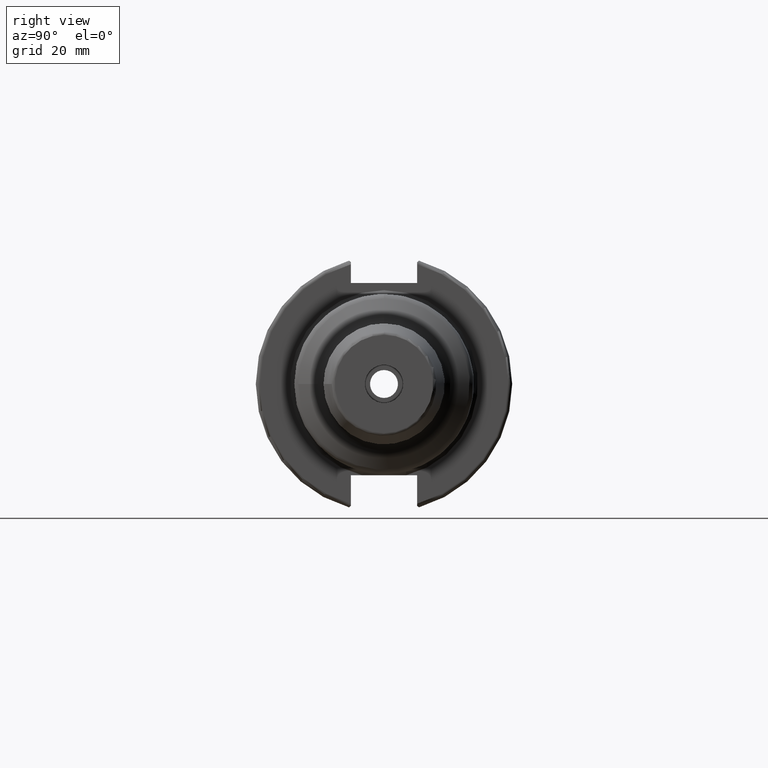
[diagram: clean part render]
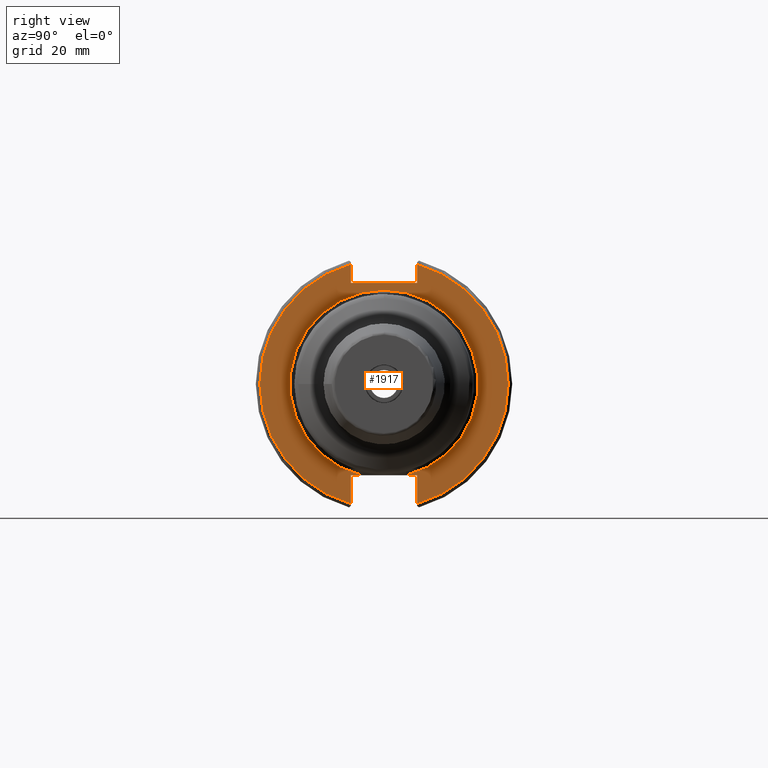
[diagram: same view with one face highlighted and labeled with its STEP entity id]
A machine part, right view. The second image highlights one B-rep face of the part: STEP entity #1917.
In plain terms, the highlighted planar face has unit normal (1, 0, 0).
Its self-contained STEP definition (entity closure, byte-faithful):
#146=PLANE('',#2168);
#216=LINE('',#3523,#311);
#217=LINE('',#3524,#312);
#218=LINE('',#3526,#313);
#219=LINE('',#3528,#314);
#220=LINE('',#3530,#315);
#221=LINE('',#3534,#316);
#222=LINE('',#3535,#317);
#311=VECTOR('',#2662,10.);
#312=VECTOR('',#2663,10.);
#313=VECTOR('',#2664,10.);
#314=VECTOR('',#2665,10.);
#315=VECTOR('',#2666,10.);
#316=VECTOR('',#2669,10.);
#317=VECTOR('',#2670,10.);
#443=FACE_OUTER_BOUND('',#560,.T.);
#560=EDGE_LOOP('',(#1591,#1592,#1593,#1594,#1595,#1596,#1597,#1598,#1599,
#1600));
#672=CIRCLE('',#2071,23.25);
#710=CIRCLE('',#2166,30.75);
#712=CIRCLE('',#2169,30.75);
#794=VERTEX_POINT('',#3009);
#795=VERTEX_POINT('',#3016);
#877=VERTEX_POINT('',#3486);
#878=VERTEX_POINT('',#3493);
#882=VERTEX_POINT('',#3522);
#883=VERTEX_POINT('',#3525);
#884=VERTEX_POINT('',#3527);
#885=VERTEX_POINT('',#3529);
#886=VERTEX_POINT('',#3531);
#887=VERTEX_POINT('',#3533);
#1015=EDGE_CURVE('',#794,#795,#672,.T.);
#1132=EDGE_CURVE('',#877,#878,#710,.T.);
#1137=EDGE_CURVE('',#794,#882,#216,.T.);
#1138=EDGE_CURVE('',#882,#878,#217,.T.);
#1139=EDGE_CURVE('',#877,#883,#218,.T.);
#1140=EDGE_CURVE('',#883,#884,#219,.T.);
#1141=EDGE_CURVE('',#884,#885,#220,.T.);
#1142=EDGE_CURVE('',#886,#885,#712,.T.);
#1143=EDGE_CURVE('',#886,#887,#221,.T.);
#1144=EDGE_CURVE('',#887,#795,#222,.T.);
#1591=ORIENTED_EDGE('',*,*,#1015,.F.);
#1592=ORIENTED_EDGE('',*,*,#1137,.T.);
#1593=ORIENTED_EDGE('',*,*,#1138,.T.);
#1594=ORIENTED_EDGE('',*,*,#1132,.F.);
#1595=ORIENTED_EDGE('',*,*,#1139,.T.);
#1596=ORIENTED_EDGE('',*,*,#1140,.T.);
#1597=ORIENTED_EDGE('',*,*,#1141,.T.);
#1598=ORIENTED_EDGE('',*,*,#1142,.F.);
#1599=ORIENTED_EDGE('',*,*,#1143,.T.);
#1600=ORIENTED_EDGE('',*,*,#1144,.T.);
#1917=ADVANCED_FACE('',(#443),#146,.T.);
#2071=AXIS2_PLACEMENT_3D('',#3017,#2431,#2432);
#2166=AXIS2_PLACEMENT_3D('',#3494,#2656,#2657);
#2168=AXIS2_PLACEMENT_3D('',#3521,#2660,#2661);
#2169=AXIS2_PLACEMENT_3D('',#3532,#2667,#2668);
#2431=DIRECTION('center_axis',(1.,0.,0.));
#2432=DIRECTION('ref_axis',(0.,-1.,-1.22464679914735E-16));
#2656=DIRECTION('center_axis',(-1.,0.,0.));
#2657=DIRECTION('ref_axis',(0.,1.,-6.12323399573677E-17));
#2660=DIRECTION('center_axis',(1.,0.,0.));
#2661=DIRECTION('ref_axis',(0.,0.,-1.));
#2662=DIRECTION('',(0.,1.,0.));
#2663=DIRECTION('',(0.,0.,-1.));
#2664=DIRECTION('',(0.,0.,-1.));
#2665=DIRECTION('',(0.,-1.,0.));
#2666=DIRECTION('',(0.,0.,1.));
#2667=DIRECTION('center_axis',(-1.,0.,0.));
#2668=DIRECTION('ref_axis',(0.,-1.,1.60812264967664E-16));
#2669=DIRECTION('',(0.,0.,1.));
#2670=DIRECTION('',(0.,1.,0.));
#3009=CARTESIAN_POINT('',(19.05,5.45916660306312,-22.6));
#3016=CARTESIAN_POINT('',(19.05,-5.45916660306312,-22.6));
#3017=CARTESIAN_POINT('Origin',(19.05,0.,0.));
#3486=CARTESIAN_POINT('',(19.05,8.19,29.6392712461019));
#3493=CARTESIAN_POINT('',(19.05,8.19,-29.6392712461019));
#3494=CARTESIAN_POINT('Origin',(19.05,0.,0.));
#3521=CARTESIAN_POINT('Origin',(19.05,0.,0.));
#3522=CARTESIAN_POINT('',(19.05,8.19,-22.6));
#3523=CARTESIAN_POINT('',(19.05,-2.77555756156289E-16,-22.6));
#3524=CARTESIAN_POINT('',(19.05,8.19,-11.3));
#3525=CARTESIAN_POINT('',(19.05,8.19,25.));
#3526=CARTESIAN_POINT('',(19.05,8.19,12.5));
#3527=CARTESIAN_POINT('',(19.05,-8.19,25.));
#3528=CARTESIAN_POINT('',(19.05,0.,25.));
#3529=CARTESIAN_POINT('',(19.05,-8.19,29.6392712461019));
#3530=CARTESIAN_POINT('',(19.05,-8.19,12.5));
#3531=CARTESIAN_POINT('',(19.05,-8.19,-29.6392712461019));
#3532=CARTESIAN_POINT('Origin',(19.05,0.,0.));
#3533=CARTESIAN_POINT('',(19.05,-8.19,-22.6));
#3534=CARTESIAN_POINT('',(19.05,-8.19,-11.3));
#3535=CARTESIAN_POINT('',(19.05,-2.77555756156289E-16,-22.6));